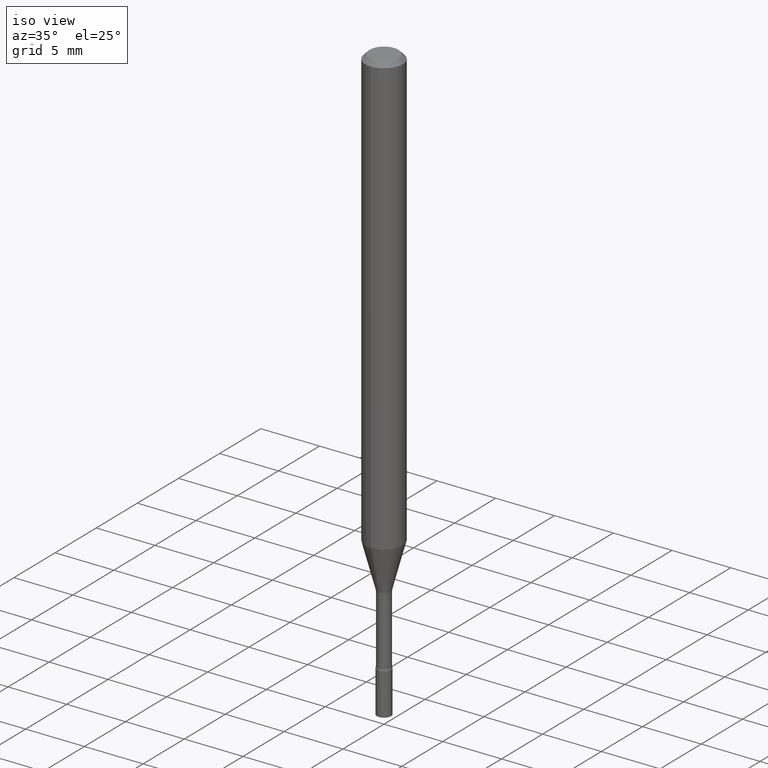
[diagram: clean part render]
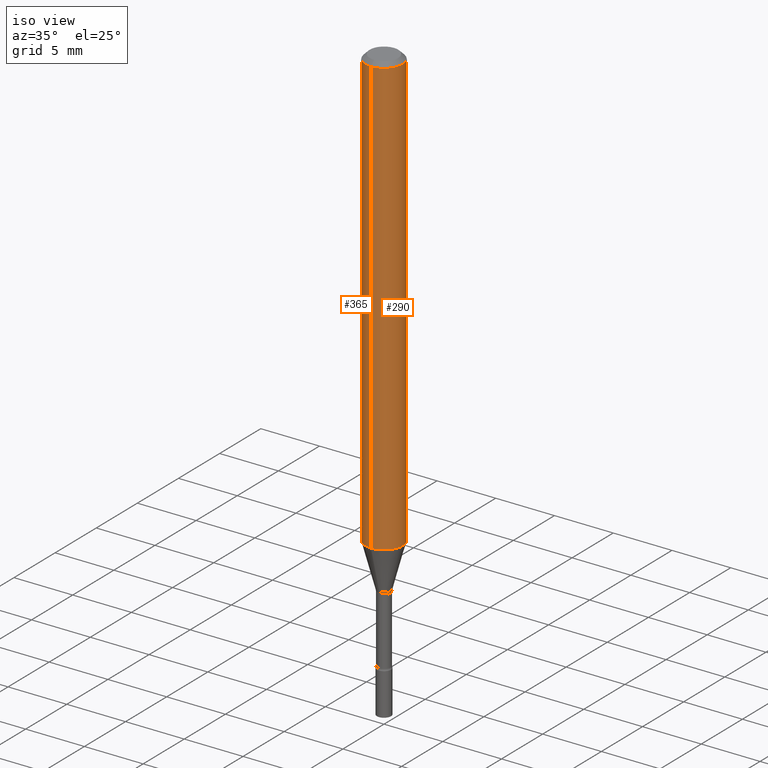
[diagram: same view with one multi-face feature highlighted, each face labeled with its STEP entity id]
A machine part, iso view. The highlighted faces form ONE feature: a constant-radius fillet chain: 2 tangent blend faces with common blend radius 1.5875 mm. The faces share edges in the B-rep.
Their STEP definitions:
[1] entity #290 (Cylinder):
#6 = CARTESIAN_POINT ( 'NONE',  ( -4.364351673553557762E-16, -0.06250000000000517641, -1.473225147374217503 ) ) ;
#55 = CARTESIAN_POINT ( 'NONE',  ( 3.668217887978764348E-31, -5.237200987529362293E-17, -0.01500000000000003067 ) ) ;
#56 = AXIS2_PLACEMENT_3D ( 'NONE', #55, #375, #323 ) ;
#69 = ORIENTED_EDGE ( 'NONE', *, *, #257, .T. ) ;
#81 = CARTESIAN_POINT ( 'NONE',  ( 0.000000000000000000, 0.000000000000000000, 0.000000000000000000 ) ) ;
#96 = DIRECTION ( 'NONE',  ( -2.445478591985837749E-29, 3.491467325019568091E-15, 1.000000000000000000 ) ) ;
#97 = VERTEX_POINT ( 'NONE', #241 ) ;
#111 = AXIS2_PLACEMENT_3D ( 'NONE', #443, #244, #400 ) ;
#124 = CARTESIAN_POINT ( 'NONE',  ( 4.440892098500625669E-16, 0.06250000000000000000, -2.182167078137229810E-16 ) ) ;
#138 = EDGE_CURVE ( 'NONE', #237, #352, #397, .T. ) ;
#140 = CARTESIAN_POINT ( 'NONE',  ( -4.364351673553916201E-16, -0.06250000000000000000, 2.182167078137229810E-16 ) ) ;
#169 = DIRECTION ( 'NONE',  ( -6.982962677686265922E-15, -1.000000000000000000, 3.491467325019567696E-15 ) ) ;
#209 = VECTOR ( 'NONE', #96, 39.37007874015748143 ) ;
#213 = DIRECTION ( 'NONE',  ( -2.445478591985837749E-29, 3.491467325019568091E-15, 1.000000000000000000 ) ) ;
#218 = FACE_OUTER_BOUND ( 'NONE', #461, .T. ) ;
#227 = EDGE_CURVE ( 'NONE', #391, #97, #423, .T. ) ;
#231 = LINE ( 'NONE', #140, #209 ) ;
#237 = VERTEX_POINT ( 'NONE', #6 ) ;
#241 = CARTESIAN_POINT ( 'NONE',  ( 4.440892098500988052E-16, 0.06249999999999993755, -0.01500000000000024751 ) ) ;
#244 = DIRECTION ( 'NONE',  ( -2.445478591985838029E-29, 3.491467325019567696E-15, 1.000000000000000000 ) ) ;
#257 = EDGE_CURVE ( 'NONE', #352, #97, #409, .T. ) ;
#262 = CARTESIAN_POINT ( 'NONE',  ( -4.364351673553912750E-16, -0.06250000000000005551, -0.01499999999999981209 ) ) ;
#290 = ADVANCED_FACE ( 'NONE', ( #218 ), #370, .T. ) ;
#319 = ORIENTED_EDGE ( 'NONE', *, *, #227, .F. ) ;
#323 = DIRECTION ( 'NONE',  ( -6.982962677686265922E-15, -1.000000000000000000, 3.483106191921935554E-15 ) ) ;
#347 = VECTOR ( 'NONE', #213, 39.37007874015748143 ) ;
#352 = VERTEX_POINT ( 'NONE', #372 ) ;
#370 = CYLINDRICAL_SURFACE ( 'NONE', #380, 0.06250000000000000000 ) ;
#372 = CARTESIAN_POINT ( 'NONE',  ( 4.440892098500984107E-16, 0.06249999999999482359, -1.473225147374217947 ) ) ;
#375 = DIRECTION ( 'NONE',  ( -2.445478591985838029E-29, 3.491467325019567696E-15, 1.000000000000000000 ) ) ;
#380 = AXIS2_PLACEMENT_3D ( 'NONE', #81, #454, #169 ) ;
#391 = VERTEX_POINT ( 'NONE', #262 ) ;
#397 = CIRCLE ( 'NONE', #111, 0.06250000000000000000 ) ;
#400 = DIRECTION ( 'NONE',  ( -6.982962677686265922E-15, -1.000000000000000000, 4.370956789862821150E-15 ) ) ;
#409 = LINE ( 'NONE', #124, #347 ) ;
#414 = ORIENTED_EDGE ( 'NONE', *, *, #457, .F. ) ;
#417 = ORIENTED_EDGE ( 'NONE', *, *, #138, .T. ) ;
#423 = CIRCLE ( 'NONE', #56, 0.06250000000000000000 ) ;
#443 = CARTESIAN_POINT ( 'NONE',  ( 3.602740559078830518E-29, -5.143717464454219042E-15, -1.473225147374217725 ) ) ;
#454 = DIRECTION ( 'NONE',  ( -2.445478591985838029E-29, 3.491467325019567696E-15, 1.000000000000000000 ) ) ;
#457 = EDGE_CURVE ( 'NONE', #237, #391, #231, .T. ) ;
#461 = EDGE_LOOP ( 'NONE', ( #417, #69, #319, #414 ) ) ;
[2] entity #365 (Cylinder):
#6 = CARTESIAN_POINT ( 'NONE',  ( -4.364351673553557762E-16, -0.06250000000000517641, -1.473225147374217503 ) ) ;
#39 = ORIENTED_EDGE ( 'NONE', *, *, #457, .T. ) ;
#40 = CIRCLE ( 'NONE', #405, 0.06250000000000000000 ) ;
#86 = DIRECTION ( 'NONE',  ( -6.982962677686265922E-15, -1.000000000000000000, 3.483106191921935554E-15 ) ) ;
#96 = DIRECTION ( 'NONE',  ( -2.445478591985837749E-29, 3.491467325019568091E-15, 1.000000000000000000 ) ) ;
#97 = VERTEX_POINT ( 'NONE', #241 ) ;
#124 = CARTESIAN_POINT ( 'NONE',  ( 4.440892098500625669E-16, 0.06250000000000000000, -2.182167078137229810E-16 ) ) ;
#126 = DIRECTION ( 'NONE',  ( -2.445478591985838029E-29, 3.491467325019567696E-15, 1.000000000000000000 ) ) ;
#132 = EDGE_LOOP ( 'NONE', ( #374, #518, #39, #173 ) ) ;
#140 = CARTESIAN_POINT ( 'NONE',  ( -4.364351673553916201E-16, -0.06250000000000000000, 2.182167078137229810E-16 ) ) ;
#157 = AXIS2_PLACEMENT_3D ( 'NONE', #418, #343, #300 ) ;
#173 = ORIENTED_EDGE ( 'NONE', *, *, #287, .F. ) ;
#209 = VECTOR ( 'NONE', #96, 39.37007874015748143 ) ;
#213 = DIRECTION ( 'NONE',  ( -2.445478591985837749E-29, 3.491467325019568091E-15, 1.000000000000000000 ) ) ;
#228 = FACE_OUTER_BOUND ( 'NONE', #132, .T. ) ;
#231 = LINE ( 'NONE', #140, #209 ) ;
#237 = VERTEX_POINT ( 'NONE', #6 ) ;
#241 = CARTESIAN_POINT ( 'NONE',  ( 4.440892098500988052E-16, 0.06249999999999993755, -0.01500000000000024751 ) ) ;
#257 = EDGE_CURVE ( 'NONE', #352, #97, #409, .T. ) ;
#262 = CARTESIAN_POINT ( 'NONE',  ( -4.364351673553912750E-16, -0.06250000000000005551, -0.01499999999999981209 ) ) ;
#287 = EDGE_CURVE ( 'NONE', #97, #391, #40, .T. ) ;
#297 = CARTESIAN_POINT ( 'NONE',  ( 3.668217887978764348E-31, -5.237200987529362293E-17, -0.01500000000000003067 ) ) ;
#300 = DIRECTION ( 'NONE',  ( -6.982962677686265922E-15, -1.000000000000000000, 3.491467325019567696E-15 ) ) ;
#315 = AXIS2_PLACEMENT_3D ( 'NONE', #485, #126, #410 ) ;
#341 = EDGE_CURVE ( 'NONE', #352, #237, #412, .T. ) ;
#343 = DIRECTION ( 'NONE',  ( -2.445478591985838029E-29, 3.491467325019567696E-15, 1.000000000000000000 ) ) ;
#347 = VECTOR ( 'NONE', #213, 39.37007874015748143 ) ;
#352 = VERTEX_POINT ( 'NONE', #372 ) ;
#365 = ADVANCED_FACE ( 'NONE', ( #228 ), #506, .T. ) ;
#372 = CARTESIAN_POINT ( 'NONE',  ( 4.440892098500984107E-16, 0.06249999999999482359, -1.473225147374217947 ) ) ;
#374 = ORIENTED_EDGE ( 'NONE', *, *, #257, .F. ) ;
#391 = VERTEX_POINT ( 'NONE', #262 ) ;
#405 = AXIS2_PLACEMENT_3D ( 'NONE', #297, #455, #86 ) ;
#409 = LINE ( 'NONE', #124, #347 ) ;
#410 = DIRECTION ( 'NONE',  ( -6.982962677686265922E-15, -1.000000000000000000, 4.370956789862821150E-15 ) ) ;
#412 = CIRCLE ( 'NONE', #315, 0.06250000000000000000 ) ;
#418 = CARTESIAN_POINT ( 'NONE',  ( 0.000000000000000000, 0.000000000000000000, 0.000000000000000000 ) ) ;
#455 = DIRECTION ( 'NONE',  ( -2.445478591985838029E-29, 3.491467325019567696E-15, 1.000000000000000000 ) ) ;
#457 = EDGE_CURVE ( 'NONE', #237, #391, #231, .T. ) ;
#485 = CARTESIAN_POINT ( 'NONE',  ( 3.602740559078830518E-29, -5.143717464454219042E-15, -1.473225147374217725 ) ) ;
#506 = CYLINDRICAL_SURFACE ( 'NONE', #157, 0.06250000000000000000 ) ;
#518 = ORIENTED_EDGE ( 'NONE', *, *, #341, .T. ) ;